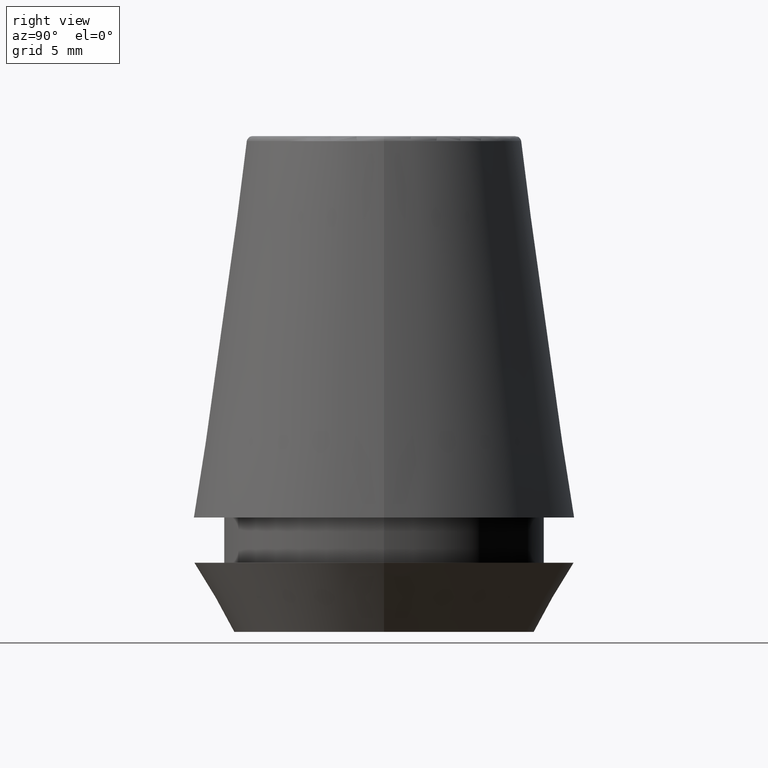
[diagram: clean part render]
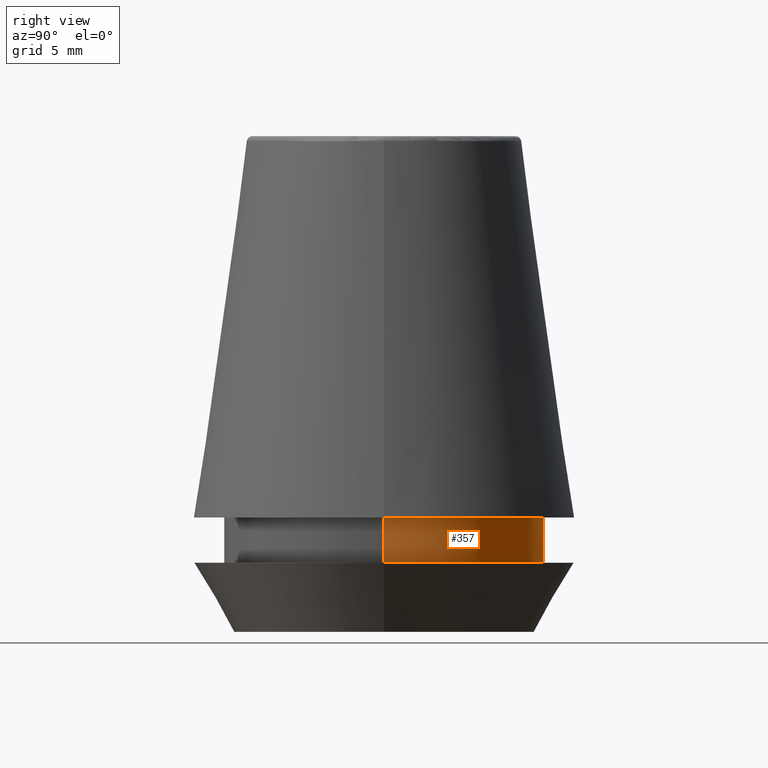
[diagram: same view with one face highlighted and labeled with its STEP entity id]
A machine part, right view. The second image highlights one B-rep face of the part: STEP entity #357.
In plain terms, the highlighted cylindrical surface (partial cylindrical patch) has radius 11 mm, axis along (-0, -0, 1).
Its self-contained STEP definition (entity closure, byte-faithful):
#13 = DIRECTION ( 'NONE',  ( -0.0000000000000000000, -0.0000000000000000000, 1.000000000000000000 ) ) ;
#14 = FACE_OUTER_BOUND ( 'NONE', #103, .T. ) ;
#15 = CARTESIAN_POINT ( 'NONE',  ( 11.00000000000000000, 0.0000000000000000000, 101.8074564848000400 ) ) ;
#19 = VERTEX_POINT ( 'NONE', #308 ) ;
#33 = AXIS2_PLACEMENT_3D ( 'NONE', #352, #123, #197 ) ;
#36 = DIRECTION ( 'NONE',  ( 1.000000000000000000, 0.0000000000000000000, 0.0000000000000000000 ) ) ;
#53 = VECTOR ( 'NONE', #13, 1000.000000000000000 ) ;
#73 = ORIENTED_EDGE ( 'NONE', *, *, #241, .T. ) ;
#79 = LINE ( 'NONE', #15, #53 ) ;
#87 = ORIENTED_EDGE ( 'NONE', *, *, #213, .T. ) ;
#91 = ORIENTED_EDGE ( 'NONE', *, *, #365, .F. ) ;
#103 = EDGE_LOOP ( 'NONE', ( #87, #73, #239, #91 ) ) ;
#117 = LINE ( 'NONE', #300, #264 ) ;
#123 = DIRECTION ( 'NONE',  ( -0.0000000000000000000, -0.0000000000000000000, 1.000000000000000000 ) ) ;
#127 = DIRECTION ( 'NONE',  ( -0.0000000000000000000, -0.0000000000000000000, 1.000000000000000000 ) ) ;
#142 = VERTEX_POINT ( 'NONE', #288 ) ;
#163 = AXIS2_PLACEMENT_3D ( 'NONE', #303, #193, #36 ) ;
#170 = CIRCLE ( 'NONE', #163, 11.00000000000000000 ) ;
#183 = CIRCLE ( 'NONE', #226, 11.00000000000000000 ) ;
#193 = DIRECTION ( 'NONE',  ( -0.0000000000000000000, -0.0000000000000000000, 1.000000000000000000 ) ) ;
#197 = DIRECTION ( 'NONE',  ( 1.000000000000000000, 0.0000000000000000000, 0.0000000000000000000 ) ) ;
#213 = EDGE_CURVE ( 'NONE', #19, #142, #170, .T. ) ;
#221 = VERTEX_POINT ( 'NONE', #277 ) ;
#226 = AXIS2_PLACEMENT_3D ( 'NONE', #331, #358, #323 ) ;
#239 = ORIENTED_EDGE ( 'NONE', *, *, #376, .F. ) ;
#241 = EDGE_CURVE ( 'NONE', #142, #294, #117, .T. ) ;
#264 = VECTOR ( 'NONE', #127, 1000.000000000000000 ) ;
#277 = CARTESIAN_POINT ( 'NONE',  ( 11.00000000000000000, 0.0000000000000000000, 7.842050807568890400 ) ) ;
#288 = CARTESIAN_POINT ( 'NONE',  ( -11.00000000000000000, 1.347111479062088400E-015, 4.742050807568884500 ) ) ;
#294 = VERTEX_POINT ( 'NONE', #355 ) ;
#300 = CARTESIAN_POINT ( 'NONE',  ( -11.00000000000000000, 1.347111479062088400E-015, 101.8074564848000400 ) ) ;
#303 = CARTESIAN_POINT ( 'NONE',  ( 0.0000000000000000000, 0.0000000000000000000, 4.742050807568884500 ) ) ;
#308 = CARTESIAN_POINT ( 'NONE',  ( 11.00000000000000000, 0.0000000000000000000, 4.742050807568884500 ) ) ;
#323 = DIRECTION ( 'NONE',  ( 1.000000000000000000, 0.0000000000000000000, 0.0000000000000000000 ) ) ;
#331 = CARTESIAN_POINT ( 'NONE',  ( 0.0000000000000000000, 0.0000000000000000000, 7.842050807568890400 ) ) ;
#337 = CYLINDRICAL_SURFACE ( 'NONE', #33, 11.00000000000000000 ) ;
#352 = CARTESIAN_POINT ( 'NONE',  ( 0.0000000000000000000, 0.0000000000000000000, 101.8074564848000400 ) ) ;
#355 = CARTESIAN_POINT ( 'NONE',  ( -11.00000000000000000, 1.347111479062088400E-015, 7.842050807568890400 ) ) ;
#357 = ADVANCED_FACE ( 'NONE', ( #14 ), #337, .T. ) ;
#358 = DIRECTION ( 'NONE',  ( -0.0000000000000000000, -0.0000000000000000000, 1.000000000000000000 ) ) ;
#365 = EDGE_CURVE ( 'NONE', #19, #221, #79, .T. ) ;
#376 = EDGE_CURVE ( 'NONE', #221, #294, #183, .T. ) ;